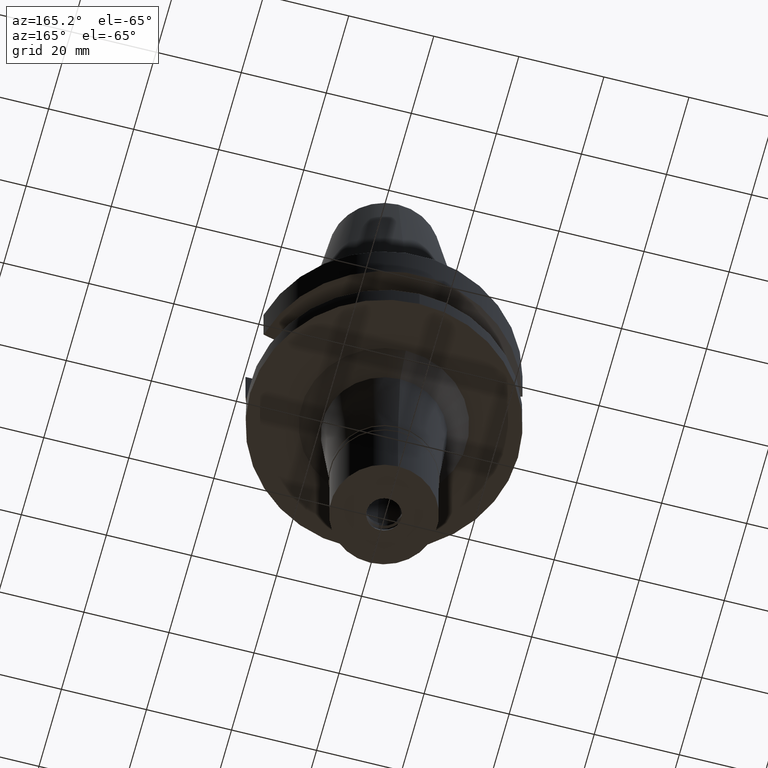
[diagram: clean part render]
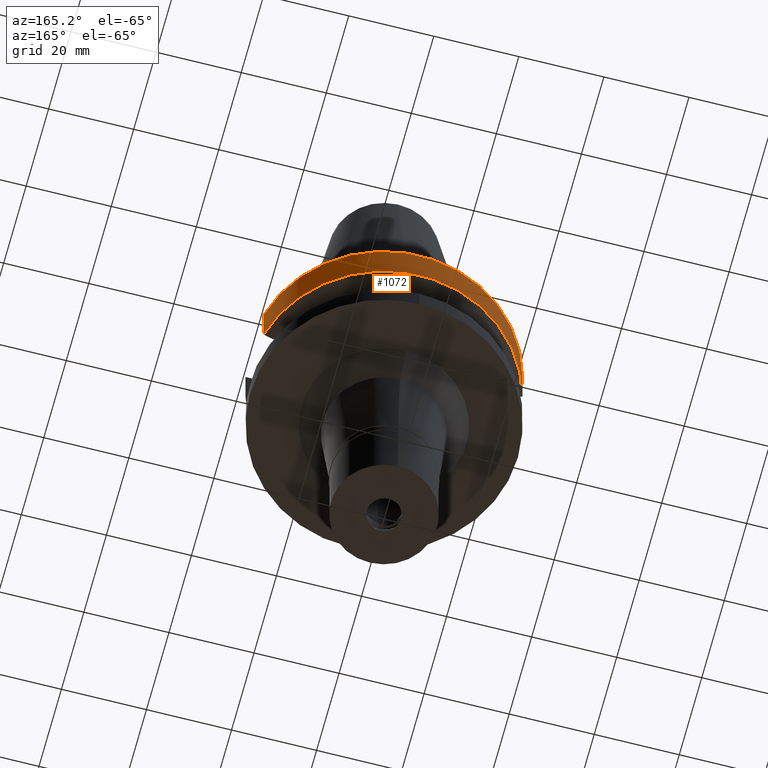
[diagram: same view with one face highlighted and labeled with its STEP entity id]
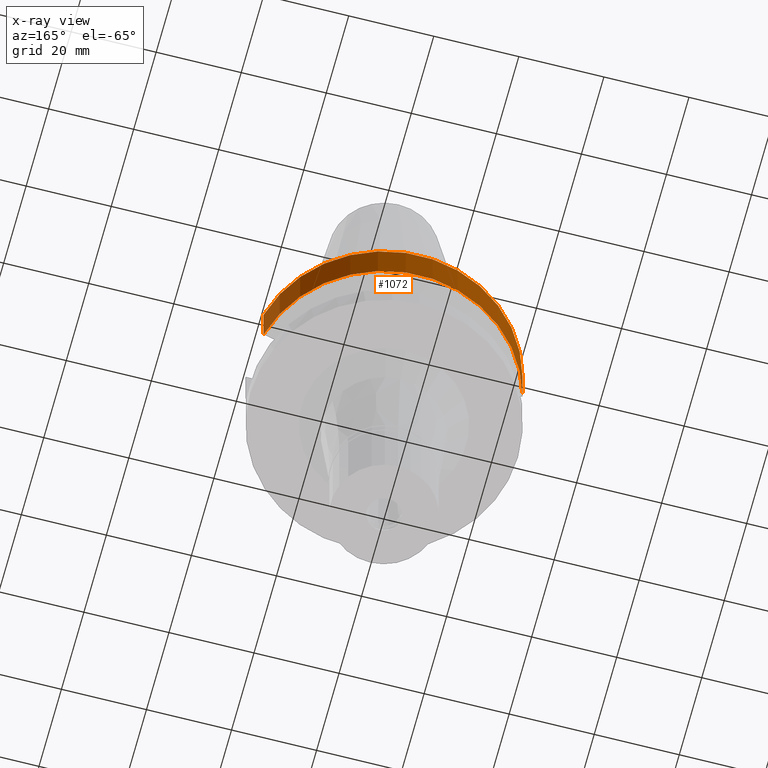
[diagram: x-ray of the same camera — body ghosted, the highlighted face saturated]
A machine part, auxiliary view. The second image highlights one B-rep face of the part: STEP entity #1072.
The next image is the same camera in x-ray: the body ghosted, the highlighted face saturated — about 0% of this face is hidden behind the body in this view.
In plain terms, the highlighted cylindrical surface (partial cylindrical patch) has radius 31.5 mm, axis along (0, 0, -1).
Its self-contained STEP definition (entity closure, byte-faithful):
#100 = DIRECTION ( 'NONE',  ( 0.0000000000000000000, -1.000000000000000000, 0.0000000000000000000 ) ) ;
#108 = DIRECTION ( 'NONE',  ( 0.0000000000000000000, 0.0000000000000000000, 1.000000000000000000 ) ) ;
#165 = EDGE_CURVE ( 'NONE', #608, #1652, #2405, .T. ) ;
#314 = CARTESIAN_POINT ( 'NONE',  ( -30.45402272279000044, 8.050000000000000711, -1.000000000000000000 ) ) ;
#394 = DIRECTION ( 'NONE',  ( 1.039226126836018235E-07, 3.931499765884066459E-07, -0.9999999999999173994 ) ) ;
#501 = CARTESIAN_POINT ( 'NONE',  ( 0.0000000000000000000, 2.107739606012999995E-14, -1.000000000000000000 ) ) ;
#550 = ORIENTED_EDGE ( 'NONE', *, *, #165, .F. ) ;
#608 = VERTEX_POINT ( 'NONE', #1645 ) ;
#728 = CARTESIAN_POINT ( 'NONE',  ( 30.45402291527999949, 8.049999271762999342, -11.56551221174999888 ) ) ;
#736 = CIRCLE ( 'NONE', #938, 31.50000000000000000 ) ;
#791 = FACE_OUTER_BOUND ( 'NONE', #852, .T. ) ;
#801 = DIRECTION ( 'NONE',  ( 0.0000000000000000000, 1.000000000000000000, 0.0000000000000000000 ) ) ;
#807 = DIRECTION ( 'NONE',  ( 0.0000000000000000000, 0.0000000000000000000, -1.000000000000000000 ) ) ;
#825 = CARTESIAN_POINT ( 'NONE',  ( -30.45402272279000044, 8.050000000000000711, -1.000000000000000000 ) ) ;
#852 = EDGE_LOOP ( 'NONE', ( #1985, #2277, #550, #1082 ) ) ;
#938 = AXIS2_PLACEMENT_3D ( 'NONE', #2272, #108, #801 ) ;
#1039 = CARTESIAN_POINT ( 'NONE',  ( 0.0000000000000000000, 2.107739606012999995E-14, 72.10999999999999943 ) ) ;
#1072 = ADVANCED_FACE ( 'NONE', ( #791 ), #2478, .T. ) ;
#1082 = ORIENTED_EDGE ( 'NONE', *, *, #2474, .T. ) ;
#1189 = DIRECTION ( 'NONE',  ( -1.821931287018990101E-08, 6.892587479941962134E-08, 0.9999999999999973355 ) ) ;
#1219 = DIRECTION ( 'NONE',  ( 0.0000000000000000000, 0.0000000000000000000, -1.000000000000000000 ) ) ;
#1249 = CARTESIAN_POINT ( 'NONE',  ( 30.45402272279000044, 8.050000000000000711, -1.000000000000000000 ) ) ;
#1483 = AXIS2_PLACEMENT_3D ( 'NONE', #501, #1219, #1894 ) ;
#1645 = CARTESIAN_POINT ( 'NONE',  ( 30.45402291527999949, 8.049999271762999342, -11.56551221174999888 ) ) ;
#1652 = VERTEX_POINT ( 'NONE', #1249 ) ;
#1669 = EDGE_CURVE ( 'NONE', #3077, #2215, #2561, .T. ) ;
#1894 = DIRECTION ( 'NONE',  ( 0.0000000000000000000, 1.000000000000000000, 0.0000000000000000000 ) ) ;
#1985 = ORIENTED_EDGE ( 'NONE', *, *, #1669, .F. ) ;
#2080 = AXIS2_PLACEMENT_3D ( 'NONE', #1039, #807, #100 ) ;
#2215 = VERTEX_POINT ( 'NONE', #2581 ) ;
#2272 = CARTESIAN_POINT ( 'NONE',  ( 0.0000000000000000000, 1.065333950388000029E-14, -11.56550565266999975 ) ) ;
#2277 = ORIENTED_EDGE ( 'NONE', *, *, #2336, .T. ) ;
#2336 = EDGE_CURVE ( 'NONE', #3077, #1652, #2865, .T. ) ;
#2405 = LINE ( 'NONE', #728, #2754 ) ;
#2474 = EDGE_CURVE ( 'NONE', #608, #2215, #736, .T. ) ;
#2478 = CYLINDRICAL_SURFACE ( 'NONE', #2080, 31.50000000000000000 ) ;
#2561 = LINE ( 'NONE', #314, #2965 ) ;
#2581 = CARTESIAN_POINT ( 'NONE',  ( -30.45402162479999930, 8.050004153812999164, -11.56546823689000192 ) ) ;
#2754 = VECTOR ( 'NONE', #1189, 1000.000000000000227 ) ;
#2865 = CIRCLE ( 'NONE', #1483, 31.50000000000000000 ) ;
#2965 = VECTOR ( 'NONE', #394, 1000.000000000000114 ) ;
#3077 = VERTEX_POINT ( 'NONE', #825 ) ;